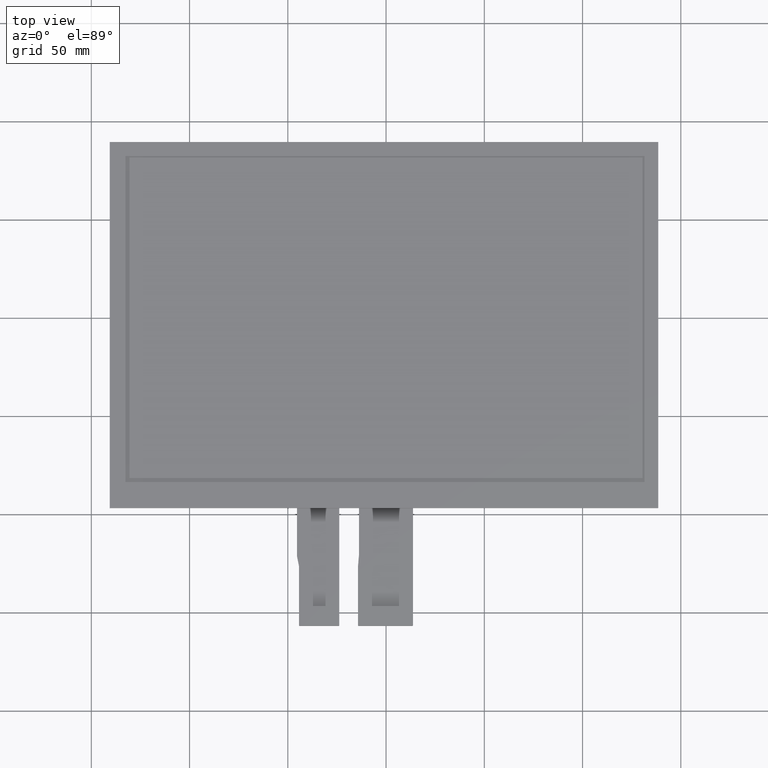
[diagram: clean part render]
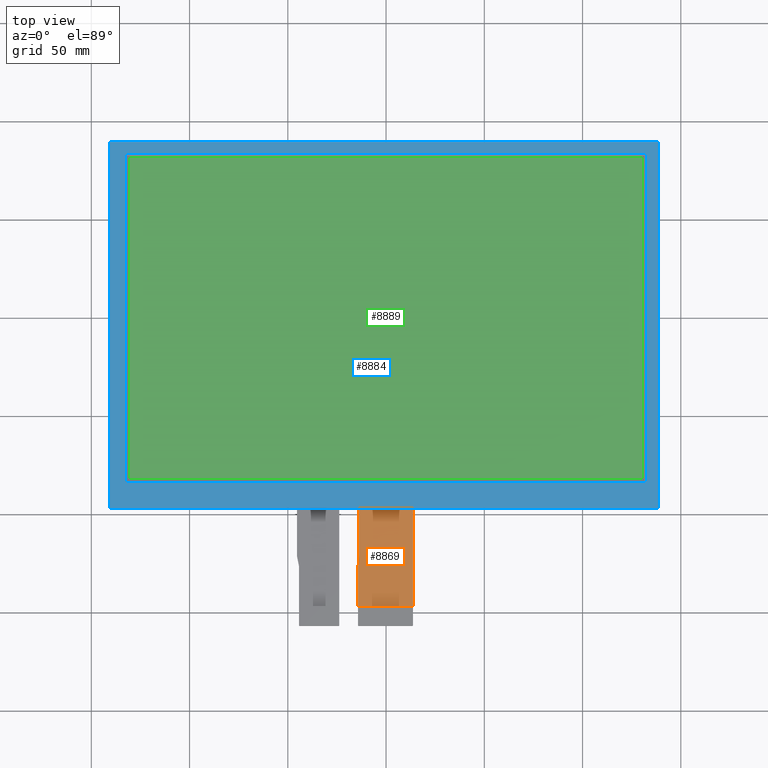
[diagram: same view with three faces highlighted in distinct colors, each labeled with its STEP entity id]
A machine part, top view with three faces highlighted in distinct colors.
Their STEP definitions:

[orange] entity #8869 — the highlighted planar face has unit normal (0, 0, 1).
#531=PLANE('',#9319);
#953=FACE_OUTER_BOUND('',#1375,.T.);
#1375=EDGE_LOOP('',(#8351,#8352,#8353,#8354,#8355,#8356));
#1803=LINE('',#12268,#3043);
#2583=LINE('',#13828,#3823);
#2586=LINE('',#13833,#3826);
#2590=LINE('',#13843,#3830);
#2594=LINE('',#13850,#3834);
#2596=LINE('',#13853,#3836);
#3043=VECTOR('',#9779,10.);
#3823=VECTOR('',#11331,10.);
#3826=VECTOR('',#11336,10.);
#3830=VECTOR('',#11346,10.);
#3834=VECTOR('',#11352,10.);
#3836=VECTOR('',#11356,10.);
#4292=VERTEX_POINT('',#12265);
#4293=VERTEX_POINT('',#12267);
#4686=VERTEX_POINT('',#13825);
#4687=VERTEX_POINT('',#13827);
#4690=VERTEX_POINT('',#13841);
#4691=VERTEX_POINT('',#13842);
#5131=EDGE_CURVE('',#4293,#4292,#1803,.T.);
#5911=EDGE_CURVE('',#4687,#4686,#2583,.T.);
#5914=EDGE_CURVE('',#4686,#4293,#2586,.T.);
#5918=EDGE_CURVE('',#4690,#4691,#2590,.T.);
#5922=EDGE_CURVE('',#4691,#4687,#2594,.T.);
#5924=EDGE_CURVE('',#4690,#4292,#2596,.T.);
#8351=ORIENTED_EDGE('',*,*,#5914,.T.);
#8352=ORIENTED_EDGE('',*,*,#5131,.T.);
#8353=ORIENTED_EDGE('',*,*,#5924,.F.);
#8354=ORIENTED_EDGE('',*,*,#5918,.T.);
#8355=ORIENTED_EDGE('',*,*,#5922,.T.);
#8356=ORIENTED_EDGE('',*,*,#5911,.T.);
#8869=ADVANCED_FACE('',(#953),#531,.T.);
#9319=AXIS2_PLACEMENT_3D('',#13852,#11354,#11355);
#9779=DIRECTION('',(1.92438657601694E-15,1.,0.));
#11331=DIRECTION('',(-2.9409881447024E-16,-1.,0.));
#11336=DIRECTION('',(1.,0.,0.));
#11346=DIRECTION('',(-3.70074341541719E-16,-1.,0.));
#11352=DIRECTION('',(-0.0858883421530291,-0.996304768974938,0.));
#11354=DIRECTION('center_axis',(0.,0.,1.));
#11355=DIRECTION('ref_axis',(1.,0.,0.));
#11356=DIRECTION('',(1.,6.36458917735668E-17,0.));
#12265=CARTESIAN_POINT('',(13.7000000000002,-96.7,-1.1));
#12267=CARTESIAN_POINT('',(13.7,-146.7,-1.1));
#12268=CARTESIAN_POINT('',(13.7,-156.7,-1.1));
#13825=CARTESIAN_POINT('',(-14.3,-146.7,-1.1));
#13827=CARTESIAN_POINT('',(-14.2999999999999,-126.5,-1.1));
#13828=CARTESIAN_POINT('',(-14.2999999999999,-126.5,-1.1));
#13833=CARTESIAN_POINT('',(6.70000000000007,-146.7,-1.1));
#13841=CARTESIAN_POINT('',(-13.7999999999998,-96.7,-1.1));
#13842=CARTESIAN_POINT('',(-13.7999999999998,-120.7,-1.1));
#13843=CARTESIAN_POINT('',(-13.7999999999998,-96.7,-1.1));
#13850=CARTESIAN_POINT('',(-13.7999999999998,-120.7,-1.1));
#13852=CARTESIAN_POINT('Origin',(-0.299999999999898,-126.7,-1.1));
#13853=CARTESIAN_POINT('',(69.1000000000001,-96.7,-1.1));

[blue] entity #8884 — the highlighted planar face has unit normal (0, 0, 1).
#132=FACE_BOUND('',#1392,.T.);
#546=PLANE('',#9334);
#968=FACE_OUTER_BOUND('',#1391,.T.);
#1391=EDGE_LOOP('',(#8425,#8426,#8427,#8428));
#1392=EDGE_LOOP('',(#8429,#8430,#8431,#8432));
#2617=LINE('',#13897,#3857);
#2621=LINE('',#13905,#3861);
#2624=LINE('',#13911,#3864);
#2627=LINE('',#13916,#3867);
#2629=LINE('',#13922,#3869);
#2630=LINE('',#13924,#3870);
#2631=LINE('',#13926,#3871);
#2632=LINE('',#13927,#3872);
#3857=VECTOR('',#11397,10.);
#3861=VECTOR('',#11403,10.);
#3864=VECTOR('',#11408,10.);
#3867=VECTOR('',#11413,10.);
#3869=VECTOR('',#11419,10.);
#3870=VECTOR('',#11420,10.);
#3871=VECTOR('',#11421,10.);
#3872=VECTOR('',#11422,10.);
#4705=VERTEX_POINT('',#13895);
#4706=VERTEX_POINT('',#13896);
#4709=VERTEX_POINT('',#13904);
#4711=VERTEX_POINT('',#13910);
#4713=VERTEX_POINT('',#13920);
#4714=VERTEX_POINT('',#13921);
#4715=VERTEX_POINT('',#13923);
#4716=VERTEX_POINT('',#13925);
#5945=EDGE_CURVE('',#4705,#4706,#2617,.T.);
#5949=EDGE_CURVE('',#4709,#4705,#2621,.T.);
#5952=EDGE_CURVE('',#4711,#4709,#2624,.T.);
#5955=EDGE_CURVE('',#4706,#4711,#2627,.T.);
#5957=EDGE_CURVE('',#4713,#4714,#2629,.T.);
#5958=EDGE_CURVE('',#4714,#4715,#2630,.T.);
#5959=EDGE_CURVE('',#4715,#4716,#2631,.T.);
#5960=EDGE_CURVE('',#4716,#4713,#2632,.T.);
#8425=ORIENTED_EDGE('',*,*,#5957,.T.);
#8426=ORIENTED_EDGE('',*,*,#5958,.T.);
#8427=ORIENTED_EDGE('',*,*,#5959,.T.);
#8428=ORIENTED_EDGE('',*,*,#5960,.T.);
#8429=ORIENTED_EDGE('',*,*,#5945,.T.);
#8430=ORIENTED_EDGE('',*,*,#5955,.T.);
#8431=ORIENTED_EDGE('',*,*,#5952,.T.);
#8432=ORIENTED_EDGE('',*,*,#5949,.T.);
#8884=ADVANCED_FACE('',(#968,#132),#546,.T.);
#9334=AXIS2_PLACEMENT_3D('',#13919,#11417,#11418);
#11397=DIRECTION('',(-2.12482875526346E-16,1.,0.));
#11403=DIRECTION('',(-1.,-2.68028191535307E-16,0.));
#11408=DIRECTION('',(2.12482875526346E-16,-1.,0.));
#11413=DIRECTION('',(1.,0.,0.));
#11417=DIRECTION('center_axis',(0.,0.,1.));
#11418=DIRECTION('ref_axis',(1.,0.,0.));
#11419=DIRECTION('',(-1.,0.,0.));
#11420=DIRECTION('',(1.90698533483655E-16,-1.,0.));
#11421=DIRECTION('',(1.,6.36458917735668E-17,0.));
#11422=DIRECTION('',(-9.53492667418277E-17,1.,0.));
#13895=CARTESIAN_POINT('',(-132.6,-83.6,0.));
#13896=CARTESIAN_POINT('',(-132.6,83.6000000000001,0.));
#13897=CARTESIAN_POINT('',(-132.6,-43.575,0.));
#13904=CARTESIAN_POINT('',(132.5,-83.5999999999999,0.));
#13905=CARTESIAN_POINT('',(65.725,-83.5999999999999,0.));
#13910=CARTESIAN_POINT('',(132.5,83.6000000000001,0.));
#13911=CARTESIAN_POINT('',(132.5,40.0250000000001,0.));
#13916=CARTESIAN_POINT('',(-66.825,83.6000000000001,0.));
#13919=CARTESIAN_POINT('Origin',(-1.05,-3.54999999999998,0.));
#13920=CARTESIAN_POINT('',(138.5,89.6000000000001,0.));
#13921=CARTESIAN_POINT('',(-140.6,89.6000000000001,0.));
#13922=CARTESIAN_POINT('',(138.5,89.6000000000001,0.));
#13923=CARTESIAN_POINT('',(-140.6,-96.7,0.));
#13924=CARTESIAN_POINT('',(-140.6,89.6,0.));
#13925=CARTESIAN_POINT('',(138.5,-96.7,0.));
#13926=CARTESIAN_POINT('',(-140.6,-96.7,0.));
#13927=CARTESIAN_POINT('',(138.5,-96.7,0.));

[green] entity #8889 — the highlighted planar face has unit normal (0, 0, 1).
#551=PLANE('',#9339);
#973=FACE_OUTER_BOUND('',#1399,.T.);
#1399=EDGE_LOOP('',(#8457,#8458,#8459,#8460));
#2605=LINE('',#13873,#3845);
#2609=LINE('',#13881,#3849);
#2612=LINE('',#13887,#3852);
#2615=LINE('',#13892,#3855);
#3845=VECTOR('',#11377,10.);
#3849=VECTOR('',#11383,10.);
#3852=VECTOR('',#11388,10.);
#3855=VECTOR('',#11393,10.);
#4697=VERTEX_POINT('',#13871);
#4698=VERTEX_POINT('',#13872);
#4701=VERTEX_POINT('',#13880);
#4703=VERTEX_POINT('',#13886);
#5933=EDGE_CURVE('',#4697,#4698,#2605,.T.);
#5937=EDGE_CURVE('',#4701,#4697,#2609,.T.);
#5940=EDGE_CURVE('',#4703,#4701,#2612,.T.);
#5943=EDGE_CURVE('',#4698,#4703,#2615,.T.);
#8457=ORIENTED_EDGE('',*,*,#5933,.T.);
#8458=ORIENTED_EDGE('',*,*,#5943,.T.);
#8459=ORIENTED_EDGE('',*,*,#5940,.T.);
#8460=ORIENTED_EDGE('',*,*,#5937,.T.);
#8889=ADVANCED_FACE('',(#973),#551,.T.);
#9339=AXIS2_PLACEMENT_3D('',#13944,#11439,#11440);
#11377=DIRECTION('',(1.,0.,0.));
#11383=DIRECTION('',(0.,-1.,0.));
#11388=DIRECTION('',(-1.,0.,0.));
#11393=DIRECTION('',(0.,1.,0.));
#11439=DIRECTION('center_axis',(0.,0.,1.));
#11440=DIRECTION('ref_axis',(1.,0.,0.));
#13871=CARTESIAN_POINT('',(-130.6,-81.6,0.));
#13872=CARTESIAN_POINT('',(130.6,-81.6,0.));
#13873=CARTESIAN_POINT('',(-65.825,-81.6,0.));
#13880=CARTESIAN_POINT('',(-130.6,81.6,0.));
#13881=CARTESIAN_POINT('',(-130.6,39.025,0.));
#13886=CARTESIAN_POINT('',(130.6,81.6,0.));
#13887=CARTESIAN_POINT('',(64.775,81.6,0.));
#13892=CARTESIAN_POINT('',(130.6,-42.575,0.));
#13944=CARTESIAN_POINT('Origin',(-1.05,-3.54999999999998,0.));